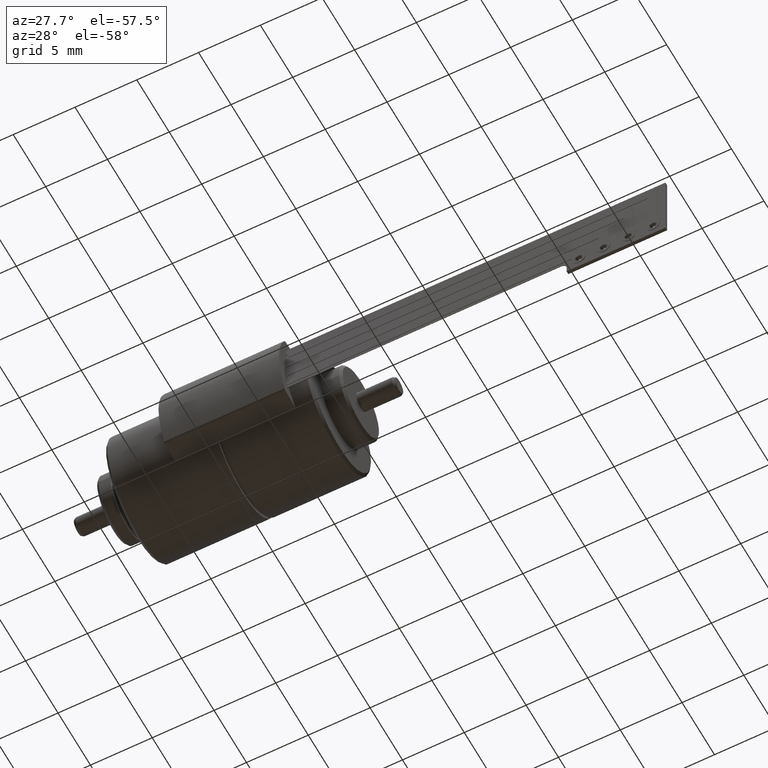
[diagram: clean part render]
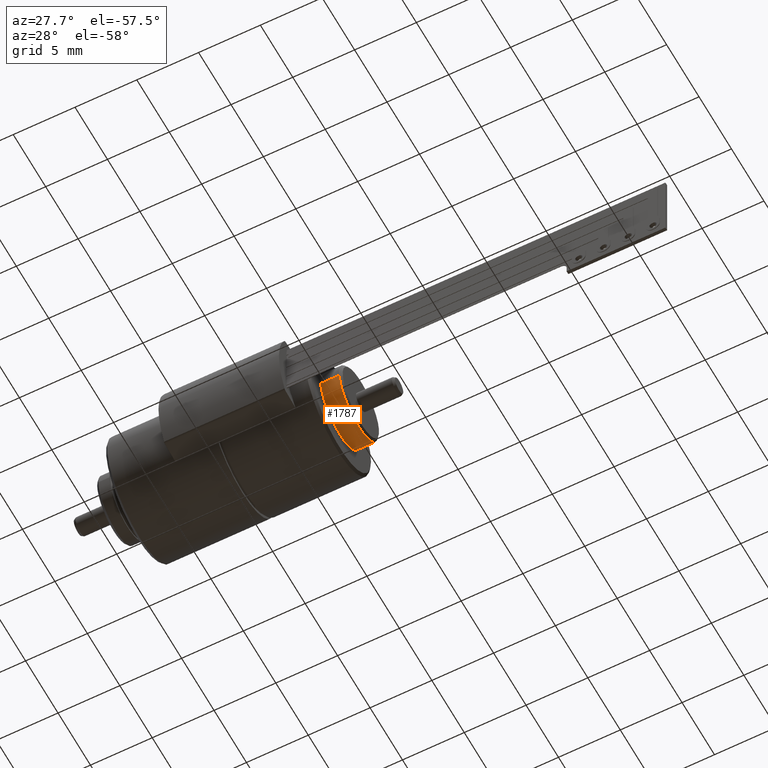
[diagram: same view with one face highlighted and labeled with its STEP entity id]
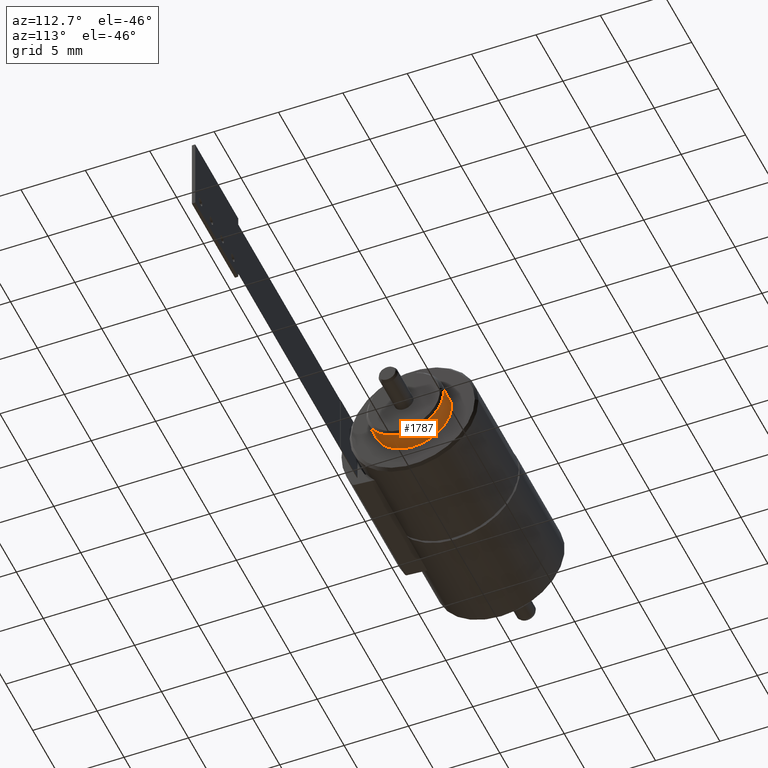
[diagram: same view with one face highlighted and labeled with its STEP entity id]
A machine part, auxiliary view. The second image highlights one B-rep face of the part: STEP entity #1787.
A second angle (auxiliary view) of the same face is appended — the face is thin or edge-on in the first view.
In plain terms, the highlighted cylindrical surface (partial cylindrical patch) has radius 3 mm, axis along (1, -0, 0).
Its self-contained STEP definition (entity closure, byte-faithful):
#1614=CARTESIAN_POINT('',(0.E0,0.E0,1.999999999998E-1));
#1615=DIRECTION('',(0.E0,0.E0,1.E0));
#1616=DIRECTION('',(-1.E0,0.E0,0.E0));
#1617=AXIS2_PLACEMENT_3D('',#1614,#1615,#1616);
#1619=CARTESIAN_POINT('',(0.E0,0.E0,1.999999999998E-1));
#1620=DIRECTION('',(0.E0,0.E0,1.E0));
#1621=DIRECTION('',(0.E0,-1.E0,0.E0));
#1622=AXIS2_PLACEMENT_3D('',#1619,#1620,#1621);
#1638=DIRECTION('',(0.E0,4.638822148104E-11,1.E0));
#1639=VECTOR('',#1638,1.5E0);
#1640=CARTESIAN_POINT('',(3.E0,-1.581920342167E-10,1.999999999998E-1));
#1641=LINE('',#1640,#1639);
#1642=DIRECTION('',(0.E0,-5.135106643085E-11,1.E0));
#1643=VECTOR('',#1642,1.5E0);
#1644=CARTESIAN_POINT('',(-3.E0,7.702629342156E-11,1.999999999998E-1));
#1645=LINE('',#1644,#1643);
#1651=CARTESIAN_POINT('',(0.E0,0.E0,1.7E0));
#1652=DIRECTION('',(0.E0,0.E0,-1.E0));
#1653=DIRECTION('',(1.E0,0.E0,0.E0));
#1654=AXIS2_PLACEMENT_3D('',#1651,#1652,#1653);
#1686=CARTESIAN_POINT('',(-3.E0,7.702629342156E-11,1.999999999998E-1));
#1687=VERTEX_POINT('',#1686);
#1688=CARTESIAN_POINT('',(0.E0,-3.E0,1.999999999998E-1));
#1689=VERTEX_POINT('',#1688);
#1690=CARTESIAN_POINT('',(3.E0,-1.329146449357E-10,1.999999999998E-1));
#1691=VERTEX_POINT('',#1690);
#1694=CARTESIAN_POINT('',(3.E0,-8.860970199508E-11,1.7E0));
#1695=VERTEX_POINT('',#1694);
#1696=CARTESIAN_POINT('',(-3.E0,0.E0,1.7E0));
#1697=VERTEX_POINT('',#1696);
#1774=CARTESIAN_POINT('',(0.E0,0.E0,0.E0));
#1775=DIRECTION('',(0.E0,0.E0,-1.E0));
#1776=DIRECTION('',(-1.E0,0.E0,0.E0));
#1777=AXIS2_PLACEMENT_3D('',#1774,#1775,#1776);
#1778=CYLINDRICAL_SURFACE('',#1777,3.E0);
#1779=ORIENTED_EDGE('',*,*,#1735,.F.);
#1780=ORIENTED_EDGE('',*,*,#1733,.F.);
#1781=ORIENTED_EDGE('',*,*,#1769,.T.);
#1783=ORIENTED_EDGE('',*,*,#1782,.F.);
#1784=ORIENTED_EDGE('',*,*,#1765,.F.);
#1785=EDGE_LOOP('',(#1779,#1780,#1781,#1783,#1784));
#1786=FACE_OUTER_BOUND('',#1785,.F.);
#1787=ADVANCED_FACE('',(#1786),#1778,.T.);
#1618=CIRCLE('',#1617,3.E0);
#1623=CIRCLE('',#1622,3.E0);
#1655=CIRCLE('',#1654,3.E0);
#1733=EDGE_CURVE('',#1687,#1689,#1618,.T.);
#1735=EDGE_CURVE('',#1689,#1691,#1623,.T.);
#1765=EDGE_CURVE('',#1691,#1695,#1641,.T.);
#1769=EDGE_CURVE('',#1687,#1697,#1645,.T.);
#1782=EDGE_CURVE('',#1695,#1697,#1655,.T.);